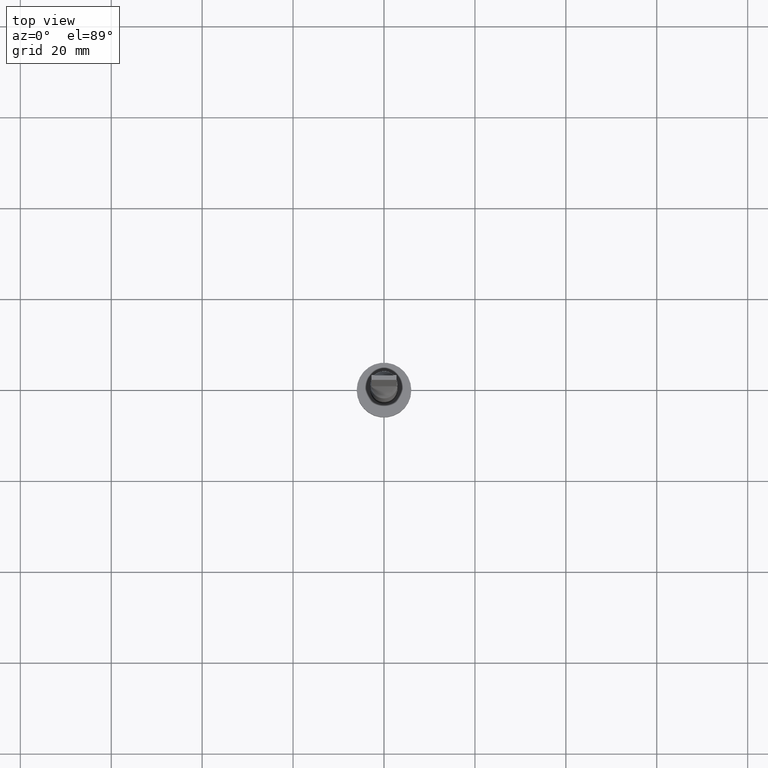
[diagram: clean part render]
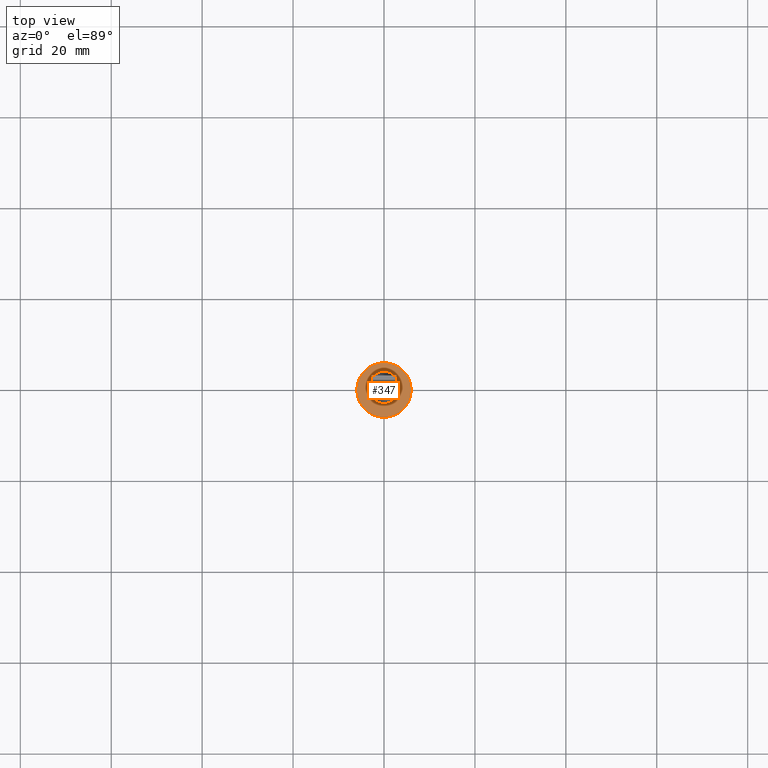
[diagram: same view with one face highlighted and labeled with its STEP entity id]
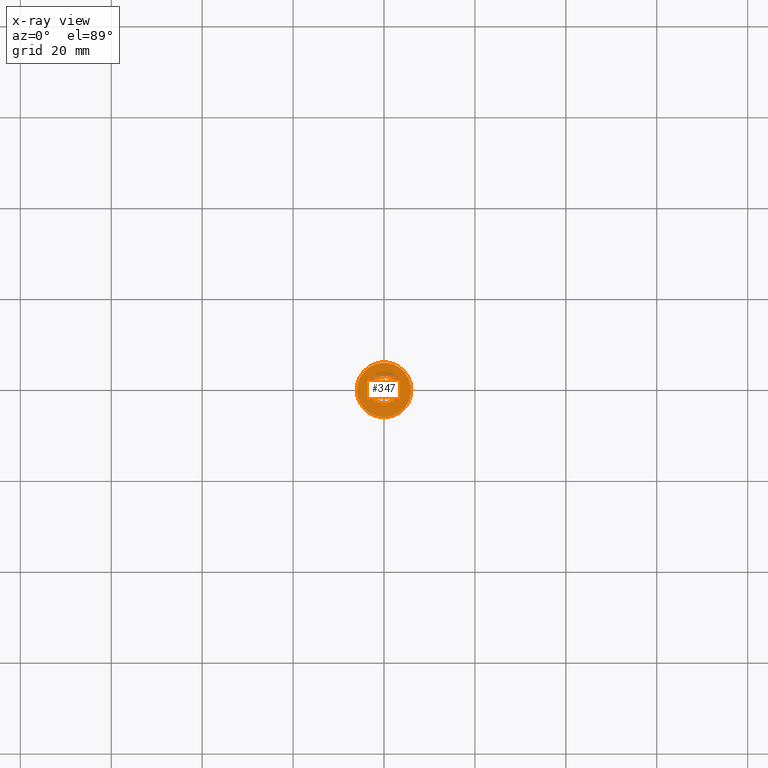
[diagram: x-ray of the same camera — body ghosted, the highlighted face saturated]
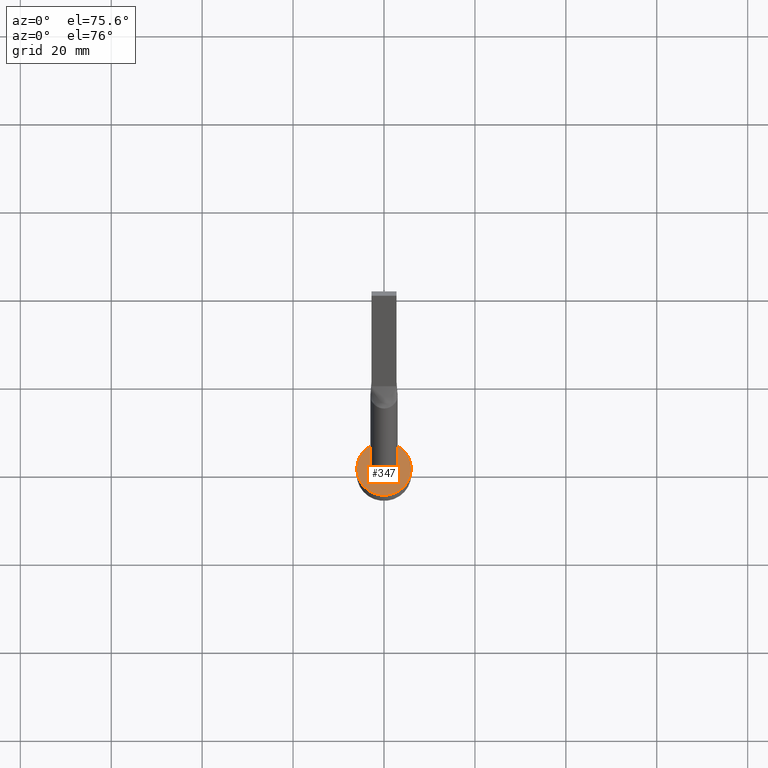
[diagram: same view with one face highlighted and labeled with its STEP entity id]
A machine part, top view. The second image highlights one B-rep face of the part: STEP entity #347.
The next image is the same camera in x-ray: the body ghosted, the highlighted face saturated — about 9% of this face is hidden behind the body in this view.
A second angle (auxiliary view) of the same face is appended — the face is thin or edge-on in the first view.
In plain terms, the highlighted planar face has unit normal (0, 0, 1).
Its self-contained STEP definition (entity closure, byte-faithful):
#6 = CIRCLE ( 'NONE', #252, 3.000000000000000444 ) ;
#11 = DIRECTION ( 'NONE',  ( 1.000000000000000000, 0.000000000000000000, 0.000000000000000000 ) ) ;
#19 = VERTEX_POINT ( 'NONE', #124 ) ;
#28 = CARTESIAN_POINT ( 'NONE',  ( -6.000000000000000888, 0.000000000000000000, 5.000000000000000000 ) ) ;
#33 = DIRECTION ( 'NONE',  ( 1.000000000000000000, 0.000000000000000000, 0.000000000000000000 ) ) ;
#50 = CARTESIAN_POINT ( 'NONE',  ( 0.000000000000000000, 0.000000000000000000, 5.000000000000000000 ) ) ;
#51 = VERTEX_POINT ( 'NONE', #28 ) ;
#92 = ORIENTED_EDGE ( 'NONE', *, *, #111, .T. ) ;
#97 = AXIS2_PLACEMENT_3D ( 'NONE', #213, #455, #450 ) ;
#111 = EDGE_CURVE ( 'NONE', #51, #142, #188, .T. ) ;
#124 = CARTESIAN_POINT ( 'NONE',  ( -3.000000000000000444, 0.000000000000000000, 5.000000000000000000 ) ) ;
#141 = DIRECTION ( 'NONE',  ( 0.000000000000000000, 0.000000000000000000, 1.000000000000000000 ) ) ;
#142 = VERTEX_POINT ( 'NONE', #539 ) ;
#188 = CIRCLE ( 'NONE', #229, 6.000000000000000888 ) ;
#207 = FACE_OUTER_BOUND ( 'NONE', #264, .T. ) ;
#213 = CARTESIAN_POINT ( 'NONE',  ( 0.000000000000000000, 0.000000000000000000, 5.000000000000000000 ) ) ;
#217 = AXIS2_PLACEMENT_3D ( 'NONE', #272, #141, #358 ) ;
#229 = AXIS2_PLACEMENT_3D ( 'NONE', #50, #443, #407 ) ;
#231 = EDGE_CURVE ( 'NONE', #142, #51, #434, .T. ) ;
#234 = CARTESIAN_POINT ( 'NONE',  ( 3.000000000000000444, 3.673940397442060361E-16, 5.000000000000000000 ) ) ;
#252 = AXIS2_PLACEMENT_3D ( 'NONE', #416, #509, #11 ) ;
#259 = PLANE ( 'NONE',  #97 ) ;
#264 = EDGE_LOOP ( 'NONE', ( #92, #423 ) ) ;
#272 = CARTESIAN_POINT ( 'NONE',  ( 0.000000000000000000, 0.000000000000000000, 5.000000000000000000 ) ) ;
#275 = ORIENTED_EDGE ( 'NONE', *, *, #276, .F. ) ;
#276 = EDGE_CURVE ( 'NONE', #536, #19, #341, .T. ) ;
#293 = ORIENTED_EDGE ( 'NONE', *, *, #405, .F. ) ;
#297 = DIRECTION ( 'NONE',  ( 0.000000000000000000, 0.000000000000000000, 1.000000000000000000 ) ) ;
#341 = CIRCLE ( 'NONE', #217, 3.000000000000000444 ) ;
#347 = ADVANCED_FACE ( 'NONE', ( #478, #207 ), #259, .T. ) ;
#358 = DIRECTION ( 'NONE',  ( 1.000000000000000000, 0.000000000000000000, 0.000000000000000000 ) ) ;
#392 = CARTESIAN_POINT ( 'NONE',  ( 0.000000000000000000, 0.000000000000000000, 5.000000000000000000 ) ) ;
#400 = EDGE_LOOP ( 'NONE', ( #293, #275 ) ) ;
#405 = EDGE_CURVE ( 'NONE', #19, #536, #6, .T. ) ;
#407 = DIRECTION ( 'NONE',  ( 1.000000000000000000, 0.000000000000000000, 0.000000000000000000 ) ) ;
#416 = CARTESIAN_POINT ( 'NONE',  ( 0.000000000000000000, 0.000000000000000000, 5.000000000000000000 ) ) ;
#423 = ORIENTED_EDGE ( 'NONE', *, *, #231, .T. ) ;
#434 = CIRCLE ( 'NONE', #522, 6.000000000000000888 ) ;
#443 = DIRECTION ( 'NONE',  ( 0.000000000000000000, 0.000000000000000000, 1.000000000000000000 ) ) ;
#450 = DIRECTION ( 'NONE',  ( 1.000000000000000000, 0.000000000000000000, -0.000000000000000000 ) ) ;
#455 = DIRECTION ( 'NONE',  ( 0.000000000000000000, 0.000000000000000000, 1.000000000000000000 ) ) ;
#478 = FACE_BOUND ( 'NONE', #400, .T. ) ;
#509 = DIRECTION ( 'NONE',  ( 0.000000000000000000, 0.000000000000000000, 1.000000000000000000 ) ) ;
#522 = AXIS2_PLACEMENT_3D ( 'NONE', #392, #297, #33 ) ;
#536 = VERTEX_POINT ( 'NONE', #234 ) ;
#539 = CARTESIAN_POINT ( 'NONE',  ( 6.000000000000000888, 7.347880794884120722E-16, 5.000000000000000000 ) ) ;